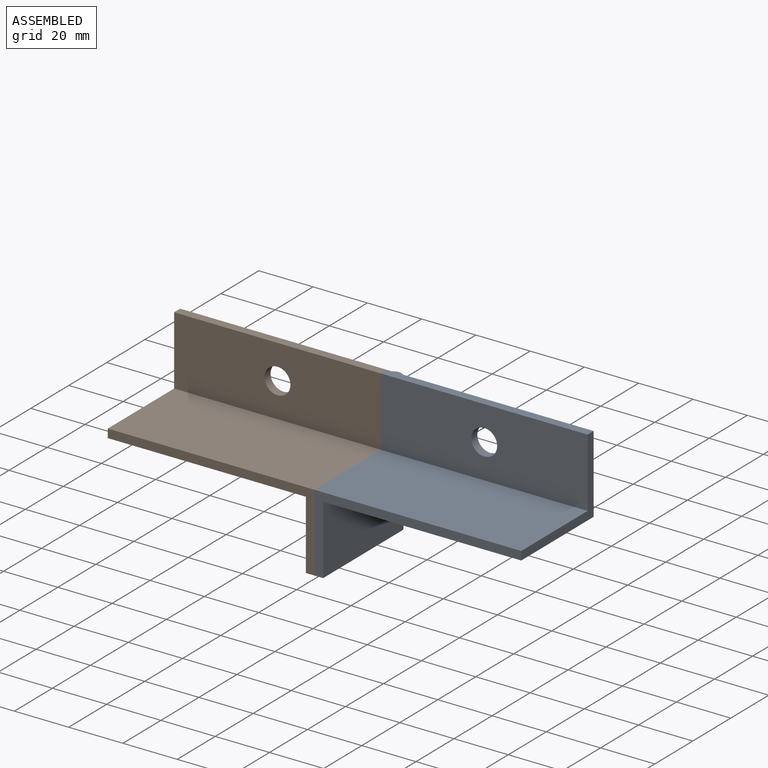
[diagram: assembled view]
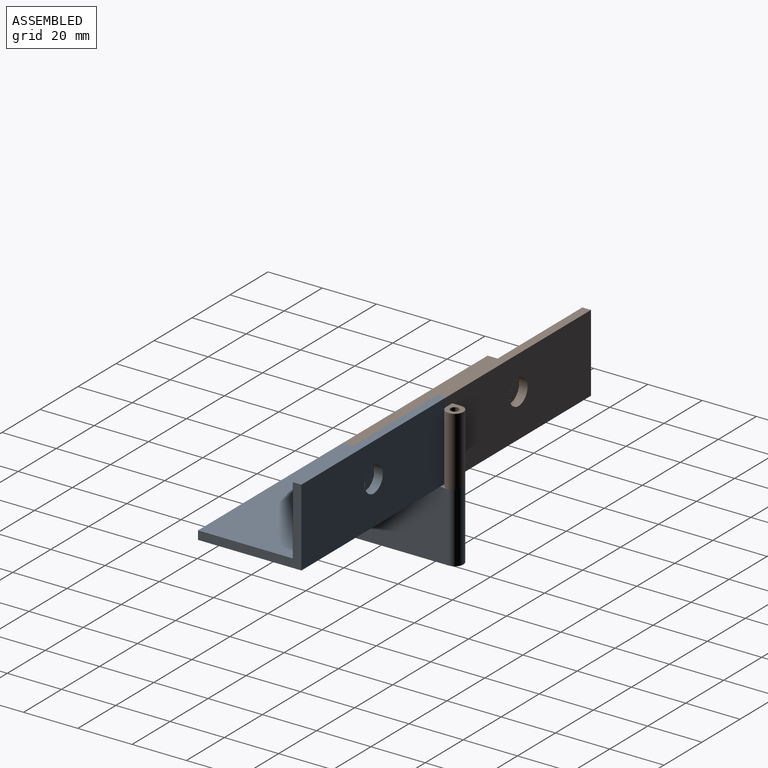
[diagram: assembled view, second angle]
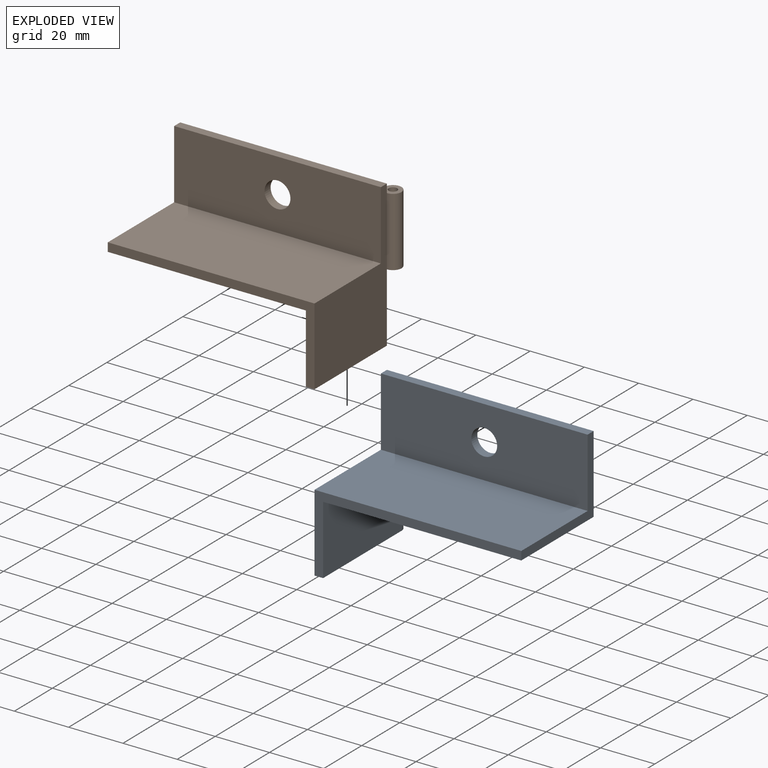
[diagram: exploded view]
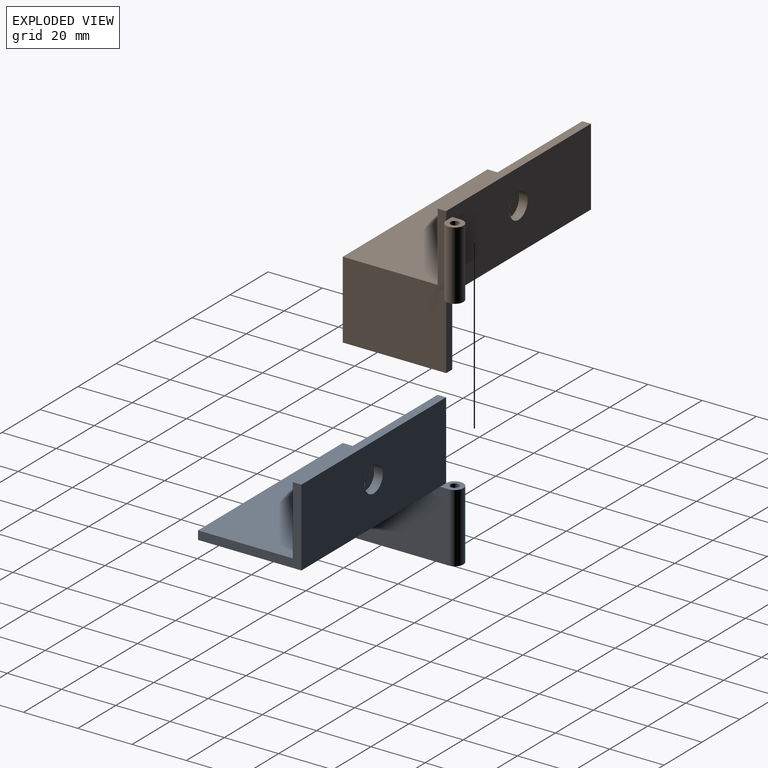
[diagram: exploded view, second angle]
ASSEMBLY  parts=2 mates=2
PART A: 14 faces, bbox 79.4x44.5x54 mm
  f0: plane 76.2x34.93mm, normal (0,0,1), area 2661.3mm2, adj f1,f5,f7,f13
  f1: plane 53.98x38.1mm, normal (-1,0,0), area 1169.4mm2, adj f0,f2,f6,f7,f8,f10,f13
  f2: plane 44.45x6.35mm, normal (0,0,-1), area 146.9mm2, adj f1,f3,f10,f12,f13
  f3: plane 41.28x25.4mm, normal (1,0,0), area 1048.4mm2, adj f2,f4,f10,f11,f13
  f4: plane 73.03x38.1mm, normal (0,0,-1), area 2782.3mm2, adj f3,f5,f6,f13
  f5: plane 38.1x28.58mm, normal (1,0,0), area 201.6mm2, adj f0,f4,f6,f7,f8,f13
  f6: plane 76.2x28.58mm, normal (0,1,0), area 2106.2mm2, adj f1,f4,f5,f8,f9,f11
  f7: plane 76.2x25.4mm, normal (0,-1,0), area 1864.2mm2, adj f0,f1,f5,f8,f9
  f8: plane 76.2x3.18mm, normal (0,0,1), area 241.9mm2, adj f1,f5,f6,f7
  f9: cylinder r=4.76mm len=9.53mm, axis (0,-1,0), area 95mm2, adj f6,f7
  f10: cylinder r=3.17mm len=25.4mm, axis (0,0,1), area 380mm2, adj f1,f2,f3,f11
  f11: plane 6.35x6.35mm, normal (0,0,1), area 25.9mm2, adj f3,f6,f10,f12
  f12: cylinder r=1.59mm len=25.4mm, axis (0,0,-1), area 253.4mm2, adj f2,f11
  f13: plane 76.2x28.58mm, normal (0,-1,0), area 322.6mm2, adj f0,f1,f2,f3,f4,f5
PART B: 16 faces, bbox 79.4x44.5x54 mm
  f0: plane 76.2x28.58mm, normal (0,1,0), area 2025.2mm2, adj f1,f3,f5,f8,f9,f13,f14
  f1: plane 79.38x44.45mm, normal (0,0,-1), area 2808.2mm2, adj f0,f2,f3,f4,f10,f12,f13,f15
  f2: plane 25.4x3.18mm, normal (0,1,0), area 80.6mm2, adj f1,f5,f10,f11
  f3: plane 38.1x28.58mm, normal (-1,0,0), area 201.6mm2, adj f0,f1,f4,f6,f7,f8
  f4: plane 76.2x28.58mm, normal (0,-1,0), area 322.6mm2, adj f1,f3,f5,f6,f10,f11
  f5: plane 53.98x38.1mm, normal (1,0,0), area 1169.4mm2, adj f0,f2,f4,f6,f7,f8,f11,f12
  f6: plane 76.2x34.93mm, normal (0,0,1), area 2661.3mm2, adj f3,f4,f5,f7
  f7: plane 76.2x25.4mm, normal (0,-1,0), area 1864.2mm2, adj f3,f5,f6,f8,f9
  f8: plane 76.2x3.18mm, normal (0,0,1), area 241.9mm2, adj f0,f3,f5,f7
  f9: cylinder r=4.76mm len=9.53mm, axis (0,-1,0), area 95mm2, adj f0,f7
  f10: plane 38.1x25.4mm, normal (-1,0,0), area 967.7mm2, adj f1,f2,f4,f11
  f11: plane 38.1x3.18mm, normal (0,0,-1), area 121mm2, adj f2,f4,f5,f10
  f12: cylinder r=3.17mm len=25.4mm, axis (0,0,-1), area 380mm2, adj f1,f5,f13,f14
  f13: plane 25.4x3.18mm, normal (-1,0,0), area 80.6mm2, adj f0,f1,f12,f14
  f14: plane 6.36x6.35mm, normal (0,0,1), area 25.9mm2, adj f0,f12,f13,f15
  f15: cylinder r=1.59mm len=25.4mm, axis (0,0,1), area 253.4mm2, adj f1,f14
PLACE A t=(-18.23,39.57,-5.5)mm
PLACE B t=(-18.23,26.88,-5.5)mm
MATE planar B.f6 <-> A.f0  axis (0,0,1) through (-56.33,44.34,-2.33)mm
MATE cylindrical A.f12 <-> B.f15  axis (0,0,-1) through (-18.23,68.14,-30.9)mm
